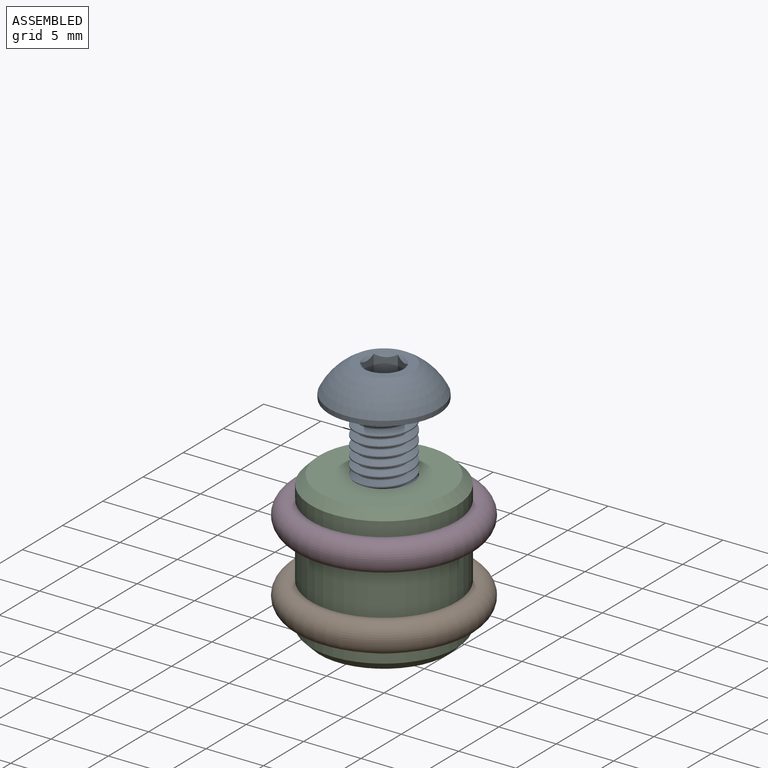
[diagram: assembled view]
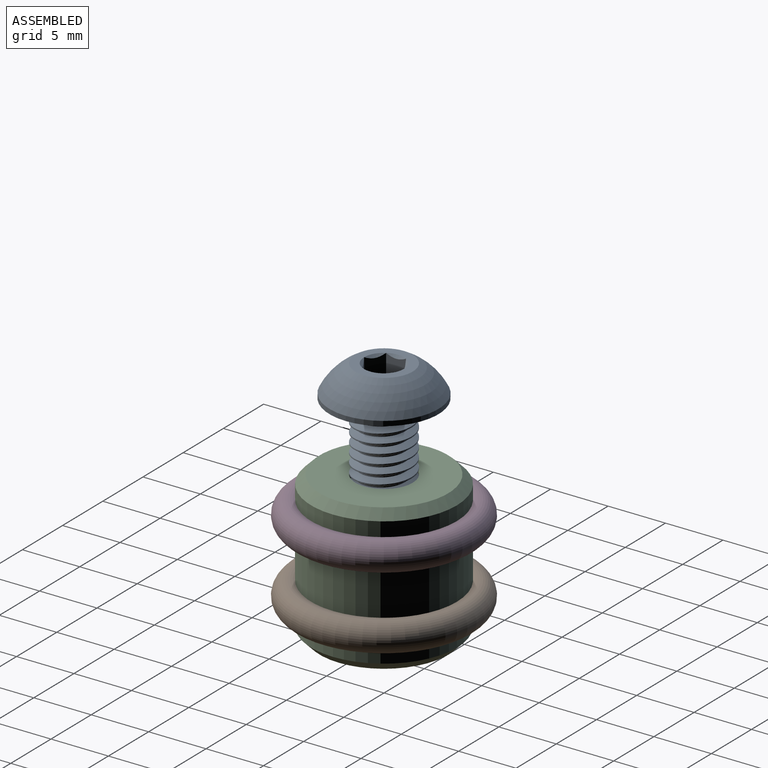
[diagram: assembled view, second angle]
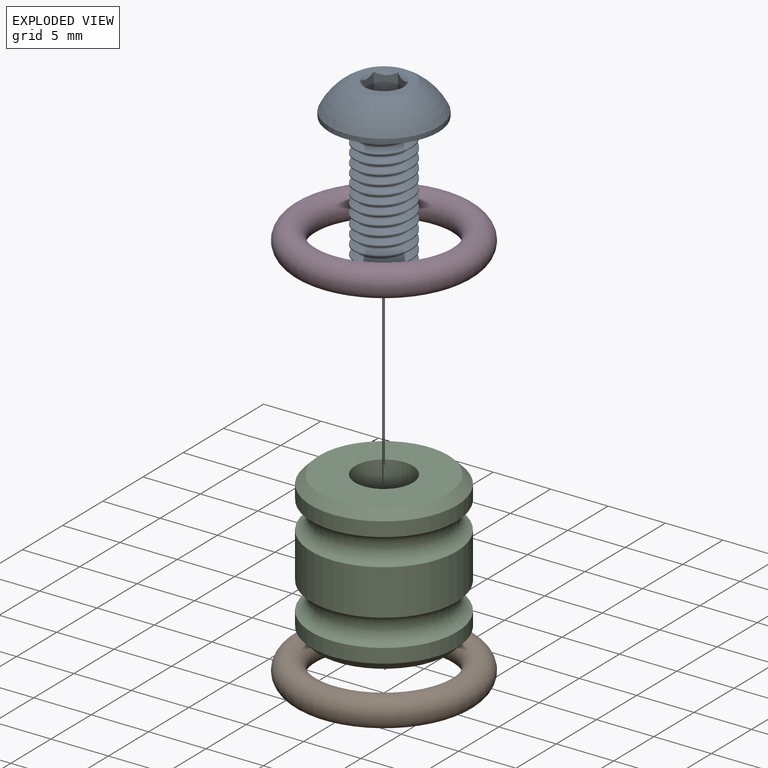
[diagram: exploded view]
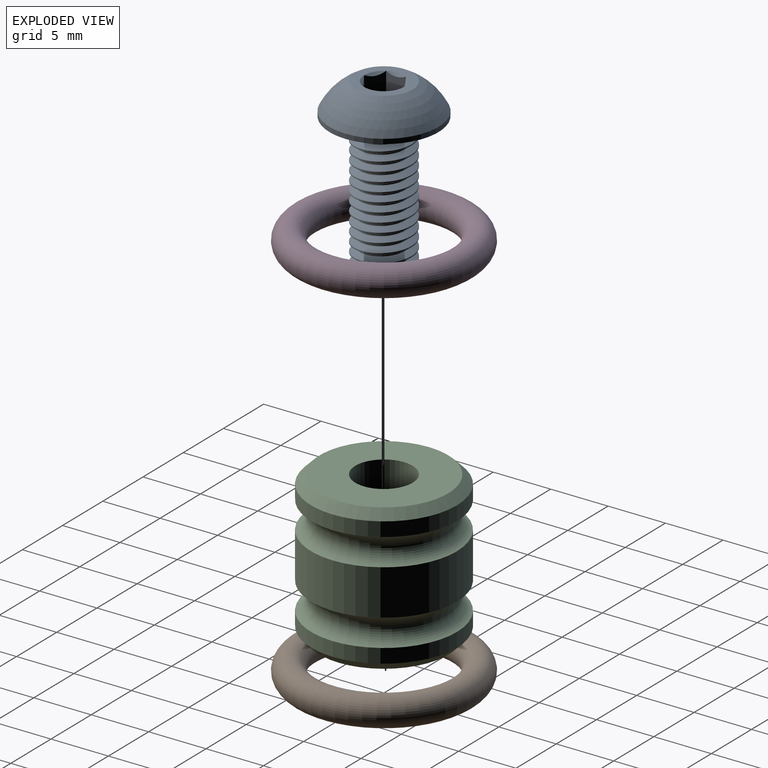
[diagram: exploded view, second angle]
ASSEMBLY  parts=4 mates=3
PART A: 24 faces, bbox 10.2x10.2x15.7 mm
  f0: cylinder r=2.5mm len=11.4mm, axis (0,0,-1), area 22.5mm2, adj f2,f4,f6,f9
  f1: cone r=1.9mm half-angle=45deg, axis (0,0,1), area 5.1mm2, adj f2,f3,f4,f5
  f2: cone r=1.9mm half-angle=45deg, axis (0,0,1), area 1.4mm2, adj f0,f1,f4,f6
  f3: plane 3.8x3.8mm, normal (0,0,-1), area 11.3mm2, adj f1
  f4: bspline ~12.6x5mm, area 123.3mm2, adj f0,f1,f2,f5,f9
  f5: bspline ~12.2x3.96mm, area 18.6mm2, adj f1,f4,f6,f9
  f6: bspline ~12.3x5mm, area 123.5mm2, adj f0,f2,f5,f9
  f7: sphere r=5.29mm, area 77.6mm2, adj f8,f10
  f8: plane 5x5mm, normal (0,0,1), area 10.2mm2, adj f7,f11,f12,f13,f14,f15,f16
  f9: plane 9.81x9.81mm, normal (0,0,-1), area 55mm2, adj f0,f4,f5,f6,f10
  f10: cylinder r=4.75mm len=9.5mm, axis (0,0,1), area 12.3mm2, adj f7,f9
  f11: cone r=1.73mm half-angle=45deg, axis (0,0,1), area 0mm2, adj f8,f18
  f12: cone r=1.73mm half-angle=45deg, axis (0,0,1), area 0mm2, adj f8,f19
  f13: cone r=1.73mm half-angle=45deg, axis (0,0,1), area 0mm2, adj f8,f20
  f14: cone r=1.73mm half-angle=45deg, axis (0,0,1), area 0mm2, adj f8,f21
  f15: cone r=1.73mm half-angle=45deg, axis (0,0,1), area 0mm2, adj f8,f22
  f16: cone r=1.73mm half-angle=45deg, axis (0,0,1), area 0mm2, adj f8,f23
  f17: plane 3.46x3mm, normal (0,0,1), area 7.8mm2, adj f18,f19,f20,f21,f22,f23
  f18: plane 2.58x2.39mm, normal (-1,0,0), area 3.1mm2, adj f11,f17,f19,f23
  f19: plane 2.58x2.16mm, normal (-0.5,-0.87,0), area 3.1mm2, adj f12,f17,f18,f20
  f20: plane 2.58x2.16mm, normal (0.5,-0.87,0), area 3.1mm2, adj f13,f17,f19,f21
  f21: plane 2.58x2.39mm, normal (1,0,0), area 3.1mm2, adj f14,f17,f20,f22
  f22: plane 2.58x2.16mm, normal (0.5,0.87,0), area 3.1mm2, adj f15,f17,f21,f23
  f23: plane 2.58x2.16mm, normal (-0.5,0.87,0), area 3.1mm2, adj f16,f17,f18,f22
PART B: 1 faces, bbox 17.5x2.5x17.5 mm
  f0: torus R=6.79mm, axis (0,-1,0), area 340.7mm2
PART C: 10 faces, bbox 14.7x14.7x12.7 mm
  f0: cylinder r=6.35mm len=12.7mm, axis (0,0,-1), area 158.4mm2, adj f1,f5
  f1: torus R=6.79mm, axis (0,0,-1), area 112.5mm2, adj f0,f2
  f2: cylinder r=6.35mm len=12.7mm, axis (0,0,-1), area 49.3mm2, adj f1,f4
  f3: plane 11.2x11.2mm, normal (0,0,1), area 78.9mm2, adj f4,f9
  f4: cone r=6.35mm half-angle=45deg, axis (0,0,-1), area 39.8mm2, adj f2,f3
  f5: torus R=6.79mm, axis (0,0,1), area 112.5mm2, adj f0,f6
  f6: cylinder r=6.35mm len=12.7mm, axis (0,0,1), area 49.3mm2, adj f5,f8
  f7: plane 11.2x11.2mm, normal (0,0,-1), area 78.9mm2, adj f8,f9
  f8: cone r=6.35mm half-angle=45deg, axis (0,0,1), area 39.8mm2, adj f6,f7
  f9: cylinder r=2.5mm len=12.7mm, axis (0,0,1), area 199.5mm2, adj f3,f7
PART D: same geometry as B
PLACE A t=(0,0,15.1)mm
PLACE B rot(axis=(1,0,0),90deg) t=(0,0,-3.18)mm
PLACE C at identity fixed
PLACE D rot(axis=(-1,0,0),90deg) t=(0,0,3.18)mm
MATE fastened A.f0 <-> C.f0  axis (0,0,-1) through (0,0,12.35)mm
MATE fastened D.f0 <-> C.f0  axis (0,0,1) through (0,0,3.18)mm
MATE fastened B.f0 <-> C.f0  axis (0,0,-1) through (0,0,-3.18)mm
